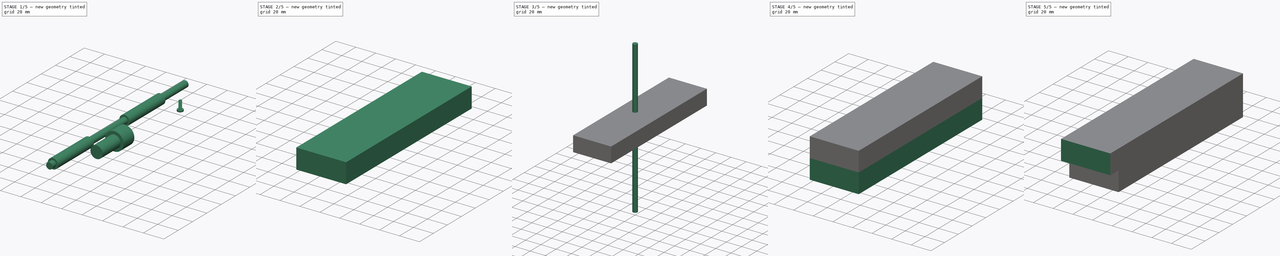
[diagram: build sequence overview — one tinted view per stage of 5, left to right]
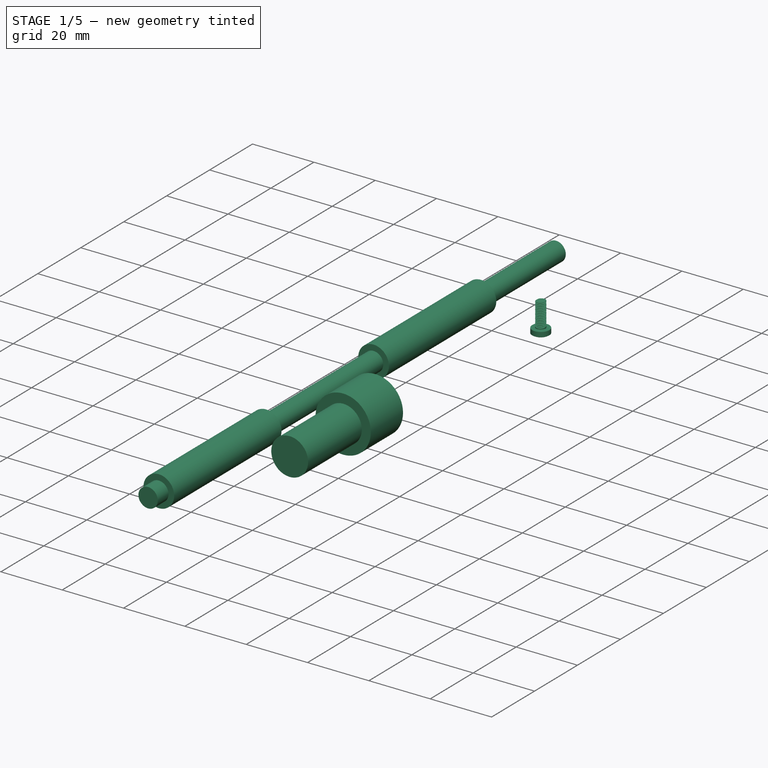
[diagram: stage 1 of 5 — iso view after this stage's code; geometry added in this stage tinted green]
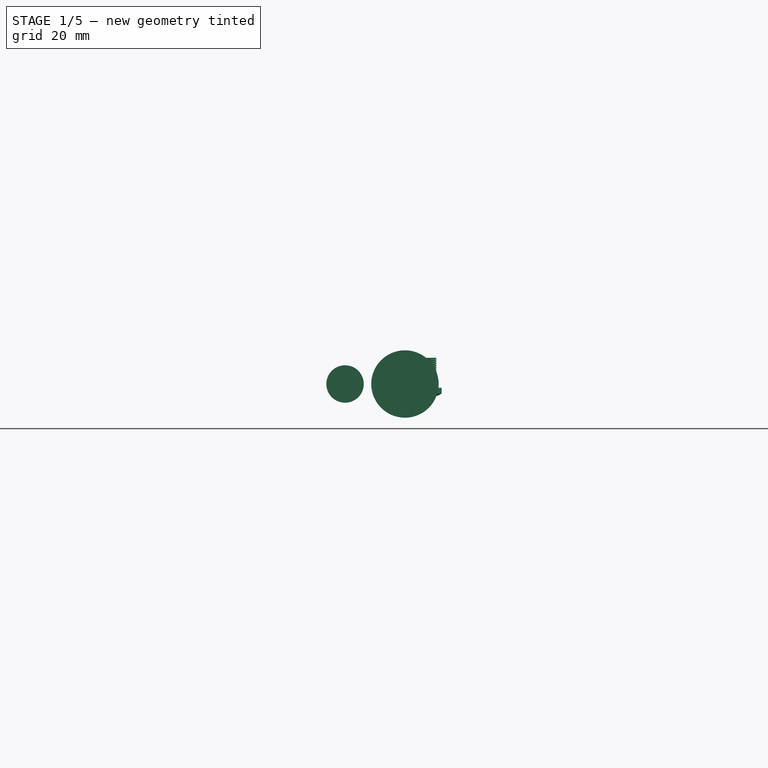
[diagram: stage 1 of 5 — front view after this stage's code; geometry added in this stage tinted green]
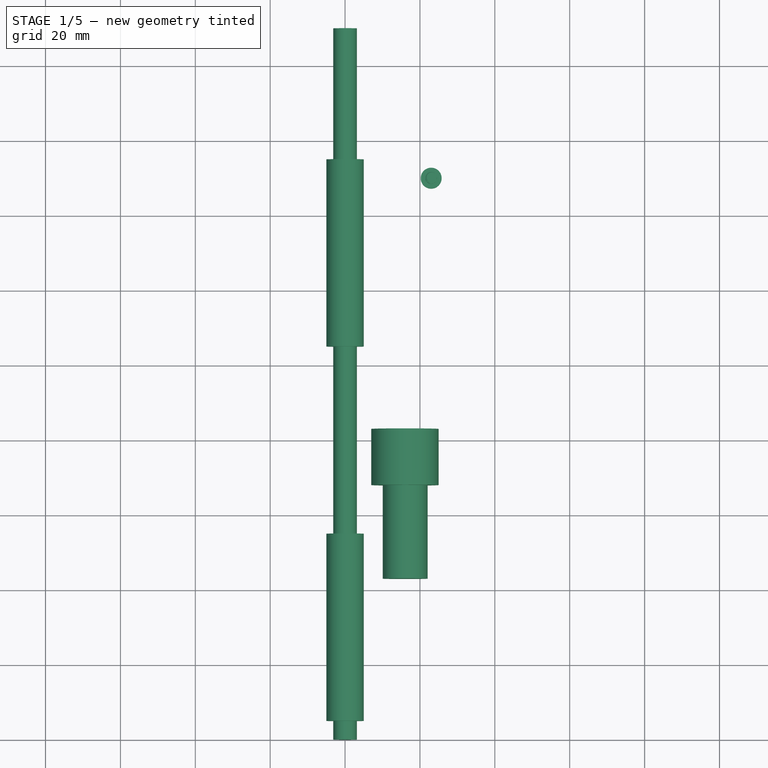
[diagram: stage 1 of 5 — top view after this stage's code; geometry added in this stage tinted green]
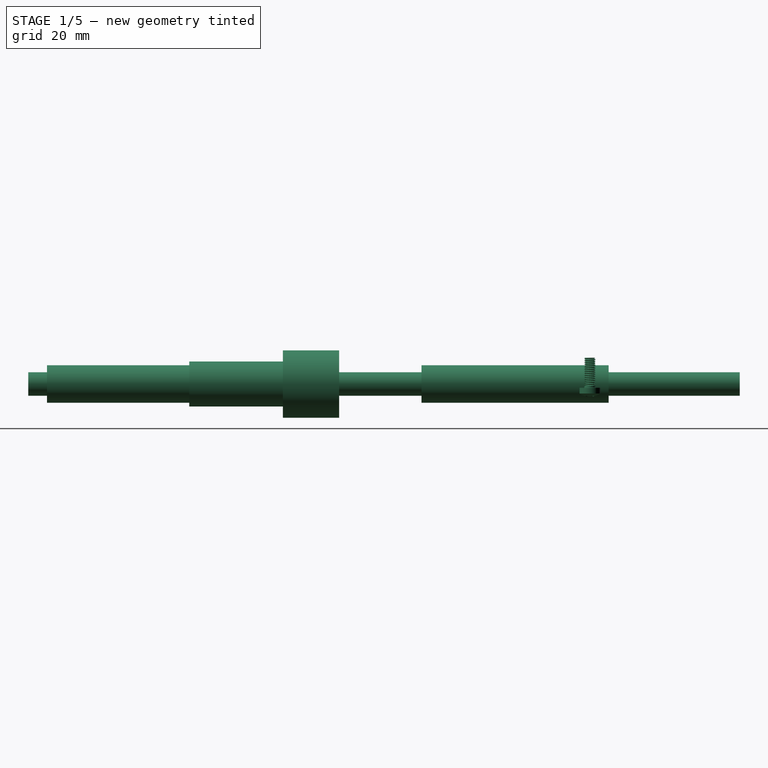
[diagram: stage 1 of 5 — right view after this stage's code; geometry added in this stage tinted green]
FCSTD DOCUMENT  (FreeCAD 0.16R6705 (Git))
Label: scatolina2
License: All rights reserved
LicenseURL: http://it.wikipedia.org/wiki/<copyright redacted>
objects: Sketcher::SketchObject×13, PartDesign::Pad×9, Part::Cut×7, PartDesign::Pocket×6, Part::FeaturePython×4, PartDesign::Mirrored×4, Part::Fuse×2, Part::MultiFuse×2, Part::Box×2, Part::Part2DObjectPython×2
note: 66 computed .brp shape members not serialized (recipe doc carries the construction recipe); baked Part::Feature solids carry a one-line shape summary decoded from their .brp

FEATURE [Sketcher::SketchObject] Sketch009
  Placement = pos=(0,3,0) rot=(1,0,0;1.5708rad)
  sketch-geometry (1):
    g0: Circle CenterX=15.9971 CenterY=9e-06 CenterZ=0 NormalX=0 NormalY=0 NormalZ=1 Radius=9
  constraints (1):
    c: Radius(g0) = 9
FEATURE [PartDesign::Pad] Pad005  label="scasso_ruota_dentata_motore"
  Length = 15
  Length2 = 100
  Placement = pos=(0,3,0) rot=(1,0,0;1.5708rad)
  Sketch = -> Sketch009
  Type = 0
FEATURE [Sketcher::SketchObject] Sketch010
  Placement = pos=(0,-25,0) rot=(1,0,0;1.5708rad)
  sketch-geometry (1):
    g0: Circle CenterX=0 CenterY=0 CenterZ=0 NormalX=0 NormalY=0 NormalZ=1 Radius=5
  constraints (1):
    c: Radius(g0) = 5
FEATURE [PartDesign::Pad] Pad006
  Length = 50
  Length2 = 100
  Placement = pos=(0,-25,0) rot=(1,0,0;1.5708rad)
  Sketch = -> Sketch010
  Type = 0
FEATURE [Sketcher::SketchObject] Sketch011
  Placement = pos=(0,75,0) rot=(1,0,0;1.5708rad)
  sketch-geometry (1):
    g0: Circle CenterX=0 CenterY=0 CenterZ=0 NormalX=0 NormalY=0 NormalZ=1 Radius=5
  constraints (1):
    c: Radius(g0) = 5
FEATURE [PartDesign::Pad] Pad007
  Length = 50
  Length2 = 100
  Placement = pos=(0,75,0) rot=(1,0,0;1.5708rad)
  Sketch = -> Sketch011
  Type = 0
FEATURE [Part::Fuse] Fusion002  label="scassi_perno"
  Base = -> Pad006
  Tool = -> Pad007
FEATURE [Sketcher::SketchObject] Sketch013
  Placement = pos=(0,-11,0) rot=(1,0,0;1.5708rad)
  sketch-geometry (1):
    g0: Circle CenterX=16.0596 CenterY=9e-06 CenterZ=0 NormalX=0 NormalY=0 NormalZ=1 Radius=6
  constraints (1):
    c: Radius(g0) = 6
FEATURE [PartDesign::Pad] Pad008  label="scasso_motore"
  Length = 26
  Length2 = 100
  Placement = pos=(0,-11,0) rot=(1,0,0;1.5708rad)
  Sketch = -> Sketch013
  Type = 0
FEATURE [Sketcher::SketchObject] Sketch006
  Placement = pos=(0,-80,0) rot=(1,0,0;1.5708rad)
  sketch-geometry (1):
    g0: Circle CenterX=0 CenterY=0 CenterZ=0 NormalX=0 NormalY=0 NormalZ=1 Radius=3.15
  constraints (1):
    c: Radius(g0) = 3.15
FEATURE [PartDesign::Pad] Pad002
  Length = 190
  Length2 = 200
  Placement = pos=(0,-80,0) rot=(1,0,0;1.5708rad)
  Reversed = true
  Sketch = -> Sketch006
  Type = 0
FEATURE [Part::FeaturePython] Screw  label="M3x8-Screw"  # Fasteners workbench fastener (typed FeaturePython)
  Placement = pos=(23,70,-1) rot=(1,0,0;3.14159rad)
  diameter = 4
  invert = false
  length = 3
  matchOuter = false
  offset = 0
  thread = true
  type = 16
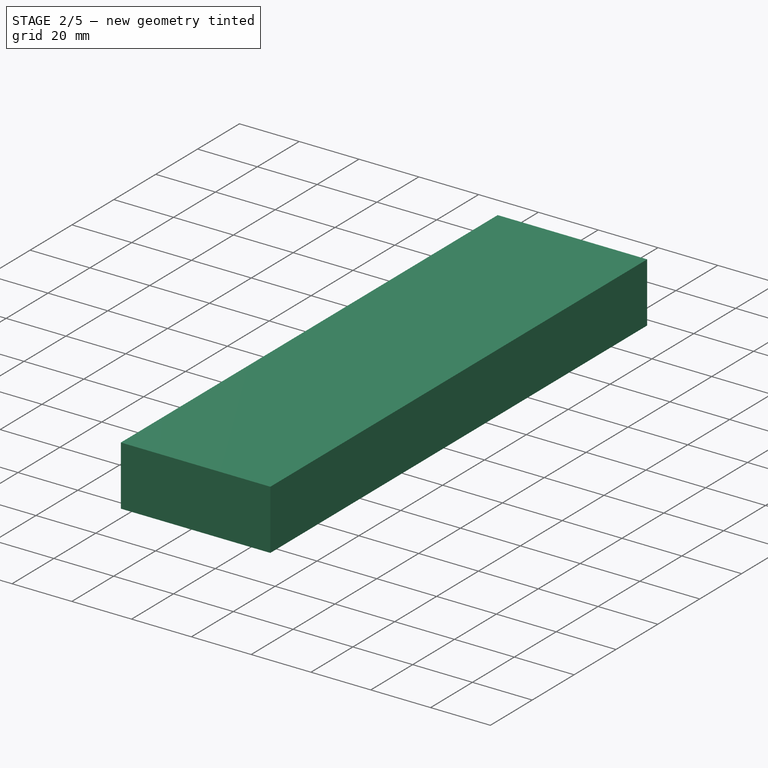
[diagram: stage 2 of 5 — iso view after this stage's code; geometry added in this stage tinted green]
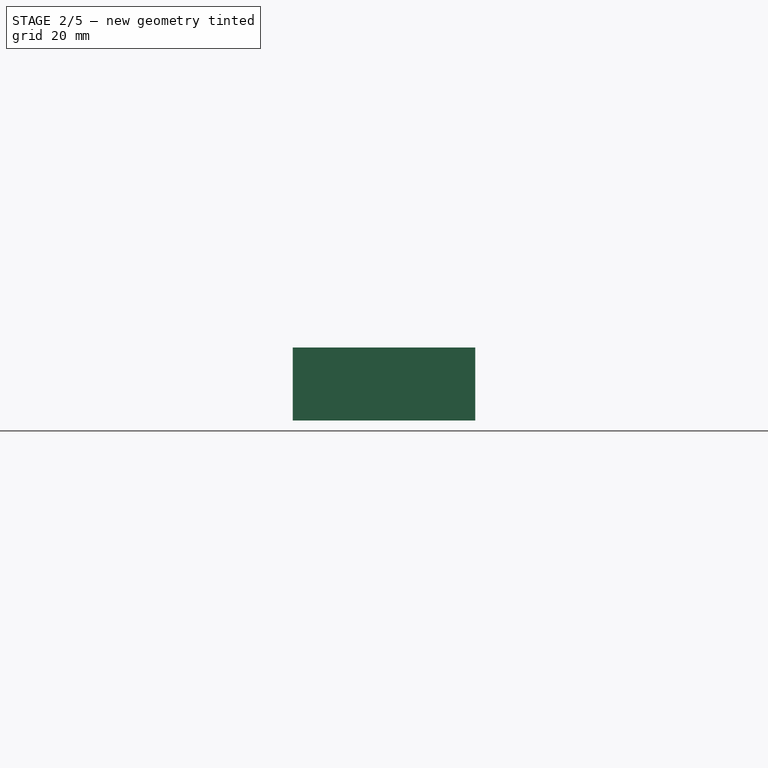
[diagram: stage 2 of 5 — front view after this stage's code; geometry added in this stage tinted green]
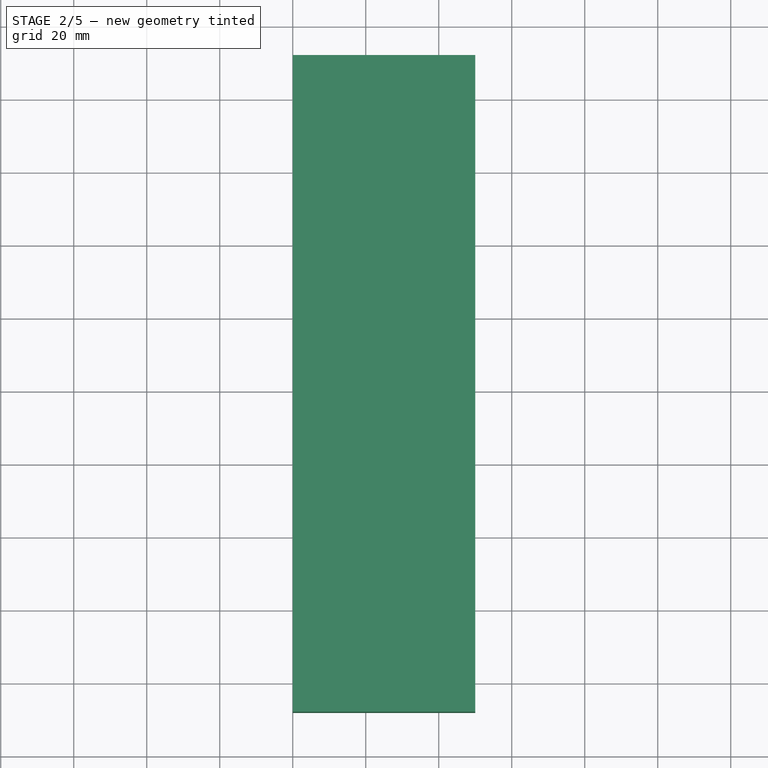
[diagram: stage 2 of 5 — top view after this stage's code; geometry added in this stage tinted green]
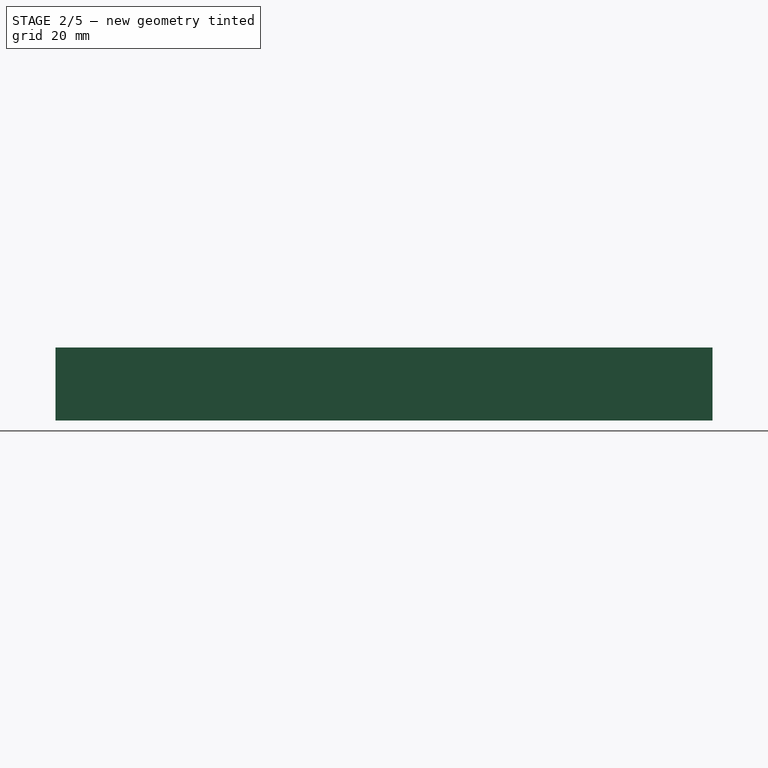
[diagram: stage 2 of 5 — right view after this stage's code; geometry added in this stage tinted green]
FEATURE [Sketcher::SketchObject] Sketch008
  Placement = pos=(0,3,0) rot=(1,0,0;1.5708rad)
  sketch-geometry (1):
    g0: Circle CenterX=0 CenterY=0 CenterZ=0 NormalX=0 NormalY=0 NormalZ=1 Radius=13
  constraints (1):
    c: Radius(g0) = 13
FEATURE [PartDesign::Pad] Pad004  label="scasso_ruota_dentata"
  Length = 15
  Length2 = 100
  Placement = pos=(0,3,0) rot=(1,0,0;1.5708rad)
  Sketch = -> Sketch008
  Type = 0
FEATURE [Part::Fuse] Fusion001  label="scassi_ruote_dentate"
  Base = -> Pad005
  Tool = -> Pad004
FEATURE [Part::MultiFuse] Fusion005  label="scassi_tutti"
  Shapes = -> [Pad008,Fusion002,Fusion001]
FEATURE [Part::Box] Box  label="Cubo"
  Height = 20
  Length = 50
  Placement = pos=(-20,-88,-1) rot=(0,0,1;0rad)
  Width = 180
FEATURE [Part::MultiFuse] Fusion
  Shapes = -> [Fusion005,Pad002]
FEATURE [Part::Cut] Cut  label="corpo"
  Base = -> Box
  Tool = -> Fusion
FEATURE [Part::Cut] Cut009
  Base = -> Cut
  Tool = -> Screw
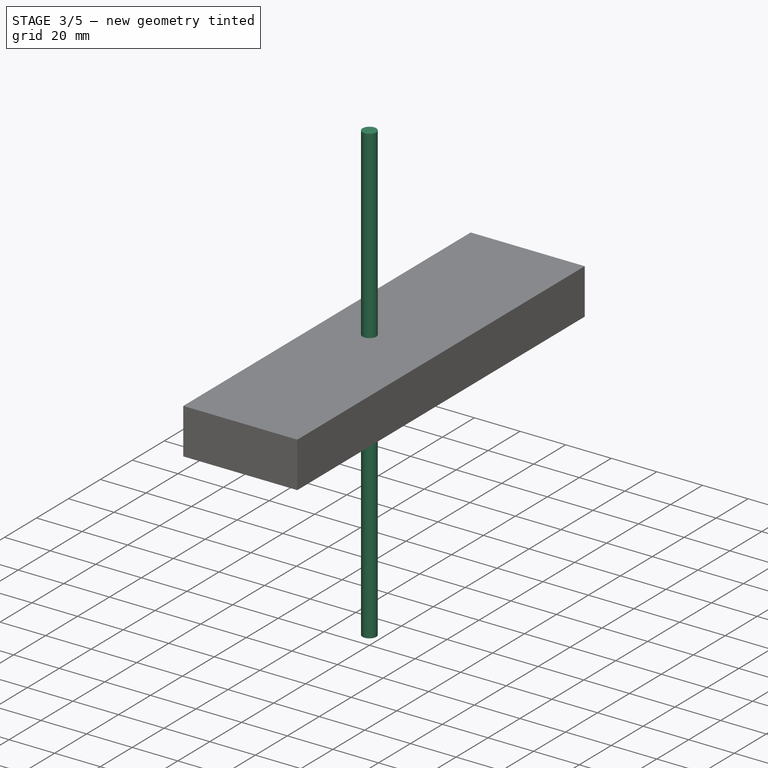
[diagram: stage 3 of 5 — iso view after this stage's code; geometry added in this stage tinted green]
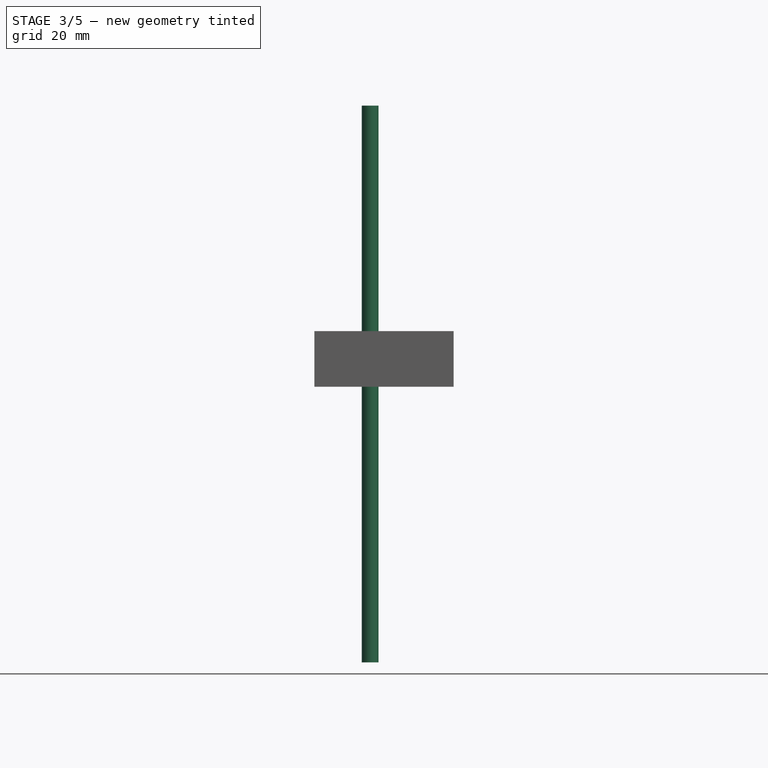
[diagram: stage 3 of 5 — front view after this stage's code; geometry added in this stage tinted green]
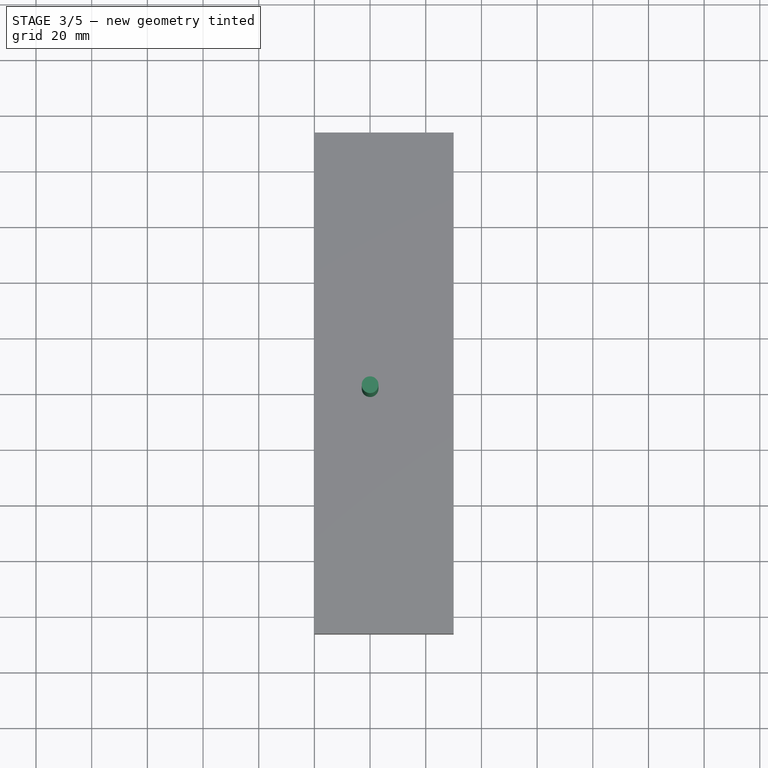
[diagram: stage 3 of 5 — top view after this stage's code; geometry added in this stage tinted green]
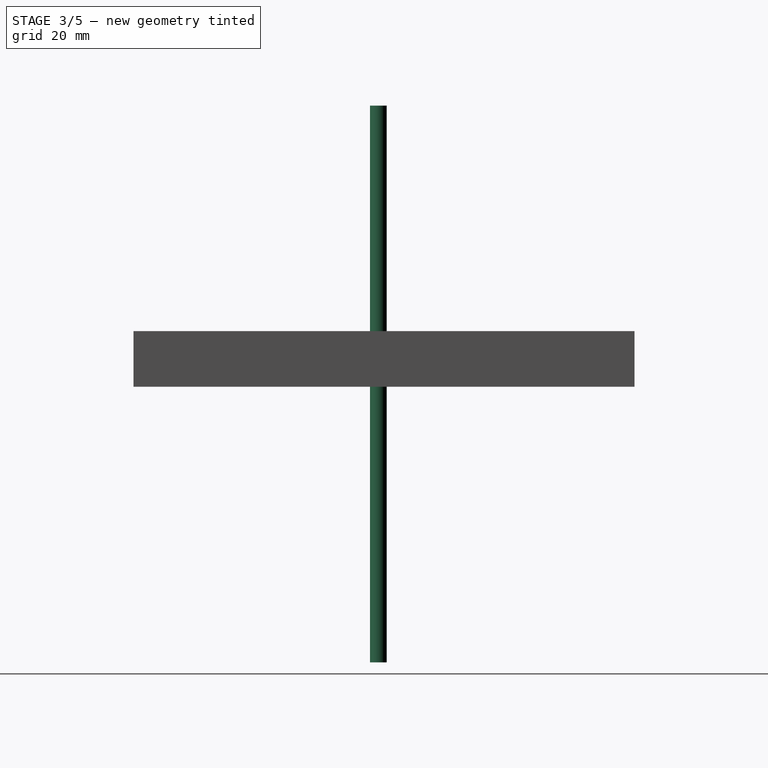
[diagram: stage 3 of 5 — right view after this stage's code; geometry added in this stage tinted green]
FEATURE [Part::FeaturePython] Screw001  label="M3x8-Screw006"  # Fasteners workbench fastener (typed FeaturePython)
  Placement = pos=(-12,70,-1) rot=(1,0,0;3.14159rad)
  diameter = 4
  invert = false
  length = 3
  matchOuter = false
  offset = 0
  thread = true
  type = 16
FEATURE [Part::FeaturePython] Screw002  label="M3x8-Screw005"  # Fasteners workbench fastener (typed FeaturePython)
  Placement = pos=(-12,-70,-1) rot=(1,0,0;3.14159rad)
  diameter = 4
  invert = false
  length = 3
  matchOuter = false
  offset = 0
  thread = true
  type = 16
FEATURE [Part::FeaturePython] Screw003  label="M3x8-Screw004"  # Fasteners workbench fastener (typed FeaturePython)
  Placement = pos=(23,-70,-1) rot=(1,0,0;3.14159rad)
  diameter = 4
  invert = false
  length = 3
  matchOuter = false
  offset = 0
  thread = true
  type = 16
FEATURE [Part::Part2DObjectPython] InvoluteGear  # Draft 2D object (typed FeaturePython)
  ExternalGear = true
  HighPrecision = true
  Modules = 1.5
  NumberOfTeeth = 13
  PressureAngle = 10
FEATURE [PartDesign::Pad] Pad
  Length = 10
  Length2 = 100
  Sketch = -> InvoluteGear
  Type = 0
FEATURE [Sketcher::SketchObject] Sketch019
  Placement = pos=(0,0,0) rot=(1,0,0;3.14159rad)
  sketch-geometry (1):
    g0: Circle CenterX=0 CenterY=0 CenterZ=0 NormalX=0 NormalY=0 NormalZ=1 Radius=3.00999
FEATURE [PartDesign::Pad] Pad011
  Length = 200
  Length2 = 200
  Midplane = true
  Placement = pos=(0,0,0) rot=(1,0,0;3.14159rad)
  Sketch = -> Sketch019
  Type = 0
FEATURE [Part::Cut] Cut010
  Base = -> Cut009
  Tool = -> Screw003
FEATURE [Part::Cut] Cut011
  Base = -> Cut010
  Tool = -> Screw002
FEATURE [Part::Cut] Cut012  label="corpo_viti"
  Base = -> Cut011
  Tool = -> Screw001
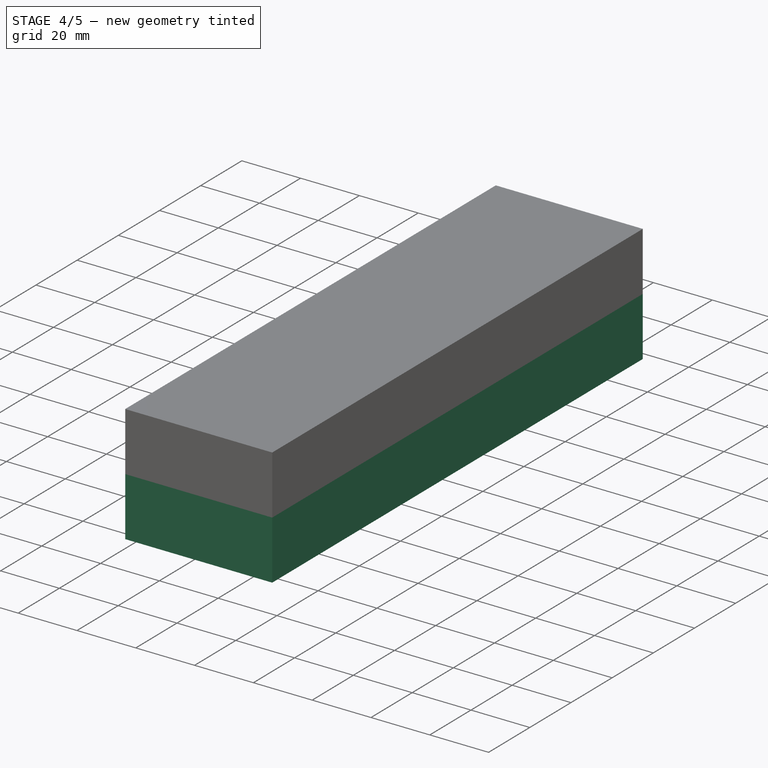
[diagram: stage 4 of 5 — iso view after this stage's code; geometry added in this stage tinted green]
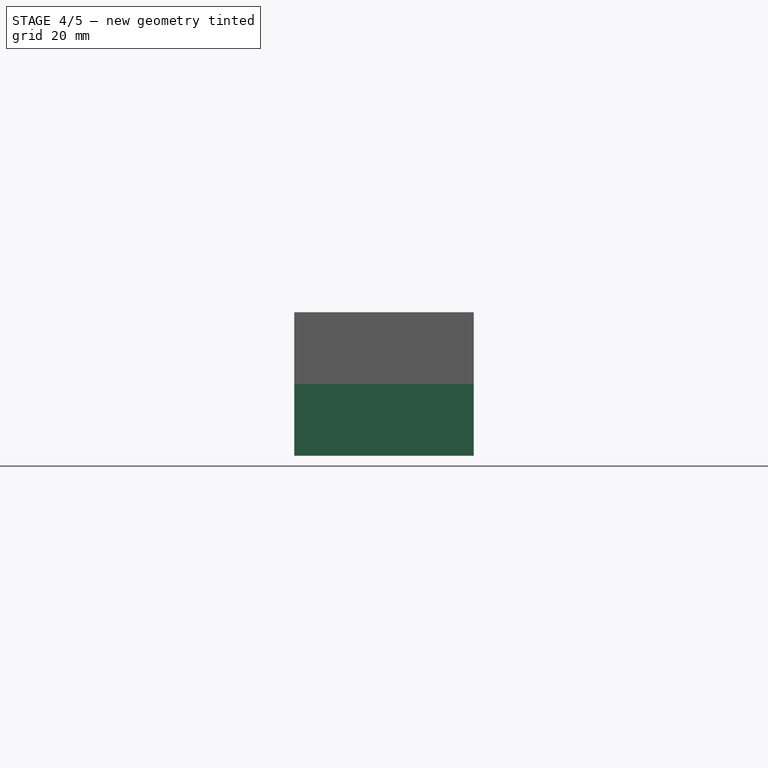
[diagram: stage 4 of 5 — front view after this stage's code; geometry added in this stage tinted green]
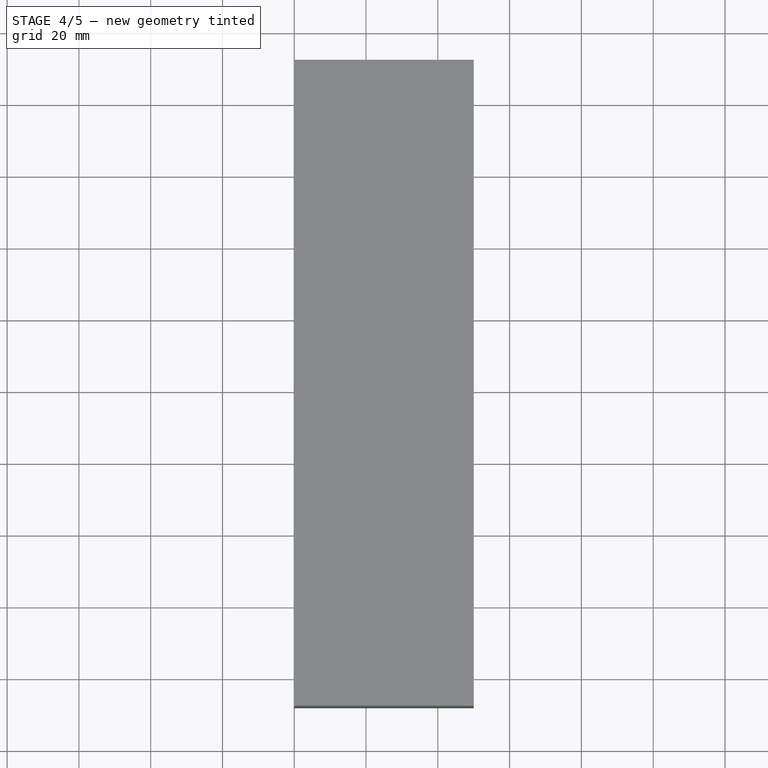
[diagram: stage 4 of 5 — top view after this stage's code; geometry added in this stage tinted green]
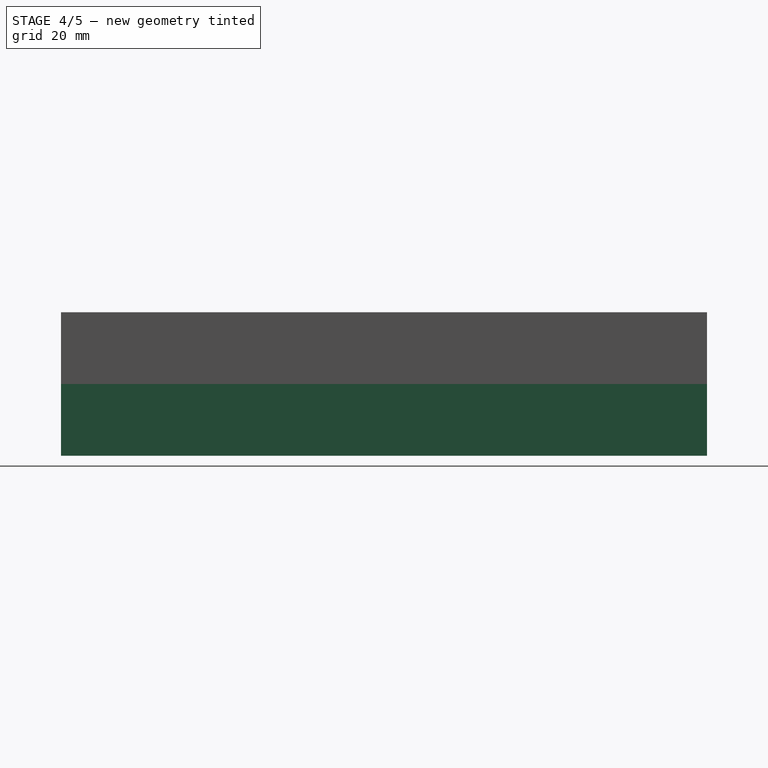
[diagram: stage 4 of 5 — right view after this stage's code; geometry added in this stage tinted green]
FEATURE [Part::Box] Box001  label="Cubo001"
  Height = 20
  Length = 50
  Placement = pos=(-20,-88,-21) rot=(0,0,1;0rad)
  Width = 180
FEATURE [Part::Cut] Cut001  label="tappo"
  Base = -> Box001
  Tool = -> Fusion
FEATURE [Sketcher::SketchObject] Sketch015
  Placement = pos=(0,0,-21) rot=(1,0,0;3.14159rad)
  Support = -> Cut001 [Face5]
  sketch-geometry (1):
    g0: Circle CenterX=23 CenterY=70 CenterZ=0 NormalX=0 NormalY=0 NormalZ=1 Radius=1.5
  constraints (3):
    c: Radius(g0) = 1.5
    c: DistanceX(g-1,g0) = 23
    c: DistanceY(g-1,g0) = 70
FEATURE [PartDesign::Pocket] Pocket001  label="buco_vite_dx"
  Length = 5
  Sketch = -> Sketch015
  Type = 1
FEATURE [PartDesign::Mirrored] Mirrored
  MirrorPlane = -> Sketch015 [H_Axis]
  Originals = -> [Pocket001]
FEATURE [Part::Part2DObjectPython] InvoluteGear001  # Draft 2D object (typed FeaturePython)
  ExternalGear = true
  HighPrecision = true
  Modules = 1.5
  NumberOfTeeth = 7
  Placement = pos=(16,0,0) rot=(1,0,0;1.5708rad)
  PressureAngle = 20
FEATURE [PartDesign::Pad] Pad010  label="pignone_pieno"
  Length = 10
  Length2 = 100
  Placement = pos=(16,0,0) rot=(1,0,0;1.5708rad)
  Sketch = -> InvoluteGear001
  Type = 0
FEATURE [Sketcher::SketchObject] Sketch012
  Placement = pos=(16,-10,0) rot=(1,0,0;1.5708rad)
  Support = -> Pad010 [Face72]
  sketch-geometry (3):
    g0: ArcOfCircle CenterX=0.00960217 CenterY=0.00978991 CenterZ=0 NormalX=0 NormalY=0 NormalZ=1 Radius=1.5 StartAngle=5.5029 EndAngle=10.2051
    g1: LineSegment StartX=-1.05646 StartY=-1.04544 StartZ=0 EndX=1.07567 EndY=-1.04544 EndZ=0
    g2: GeomPoint [constr] X=1.0761 Y=-1.19021 Z=0
  constraints (5):
    c: Radius(g0) = 1.5
    c: Parallel(g-1,g1)
    c: Coincident(g0,g1)
    c: Coincident(g0,g1)
    c: DistanceY(g2,g0) = 1.2
FEATURE [PartDesign::Pocket] Pocket005  label="pignone"
  Length = 5
  Placement = pos=(16,0,0) rot=(1,0,0;1.5708rad)
  Sketch = -> Sketch012
  Type = 1
FEATURE [Part::Cut] Cut008  label="ingranaggio_centrale"
  Base = -> Pad
  Tool = -> Pad011
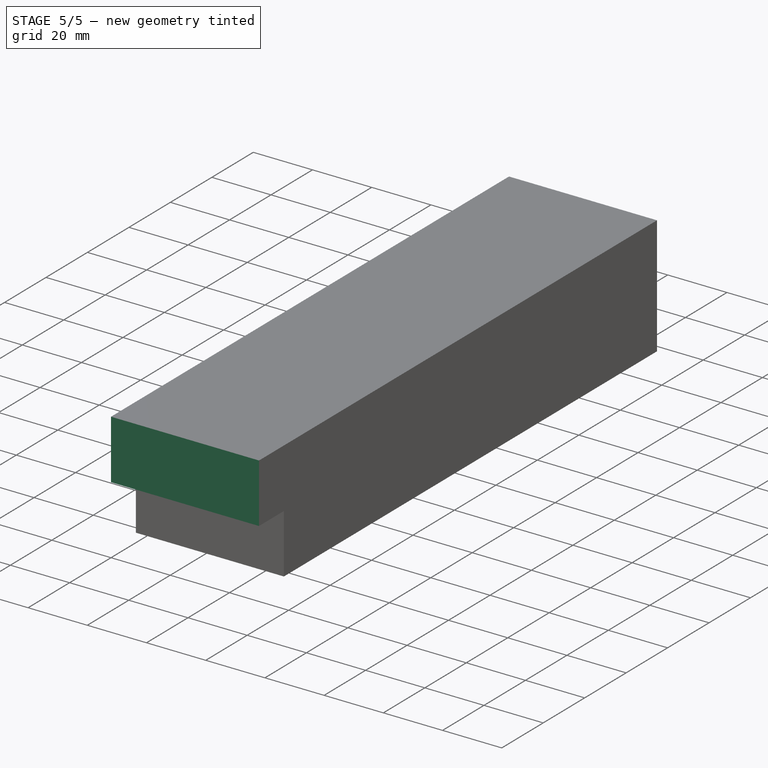
[diagram: stage 5 of 5 — iso view after this stage's code; geometry added in this stage tinted green]
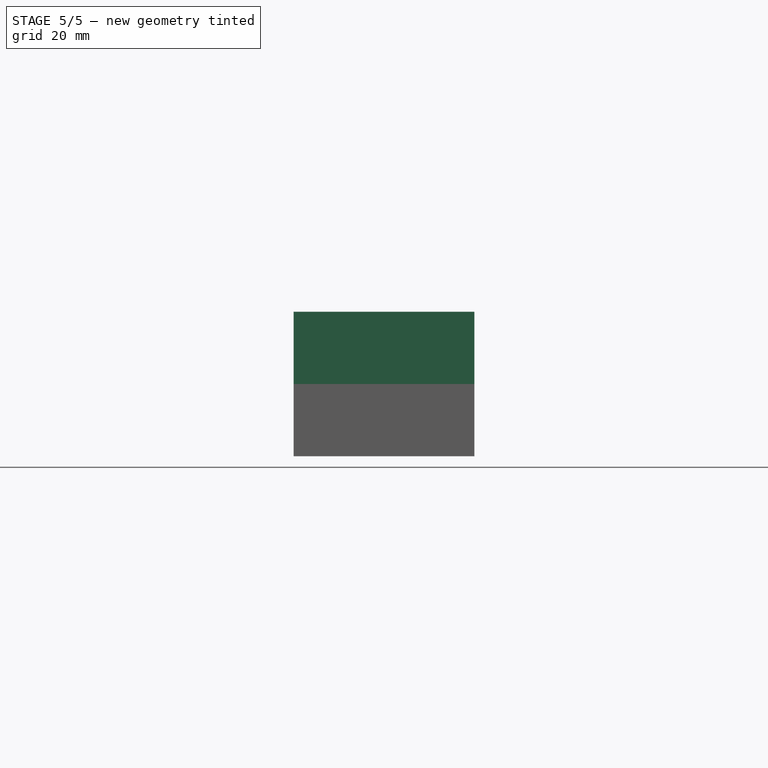
[diagram: stage 5 of 5 — front view after this stage's code; geometry added in this stage tinted green]
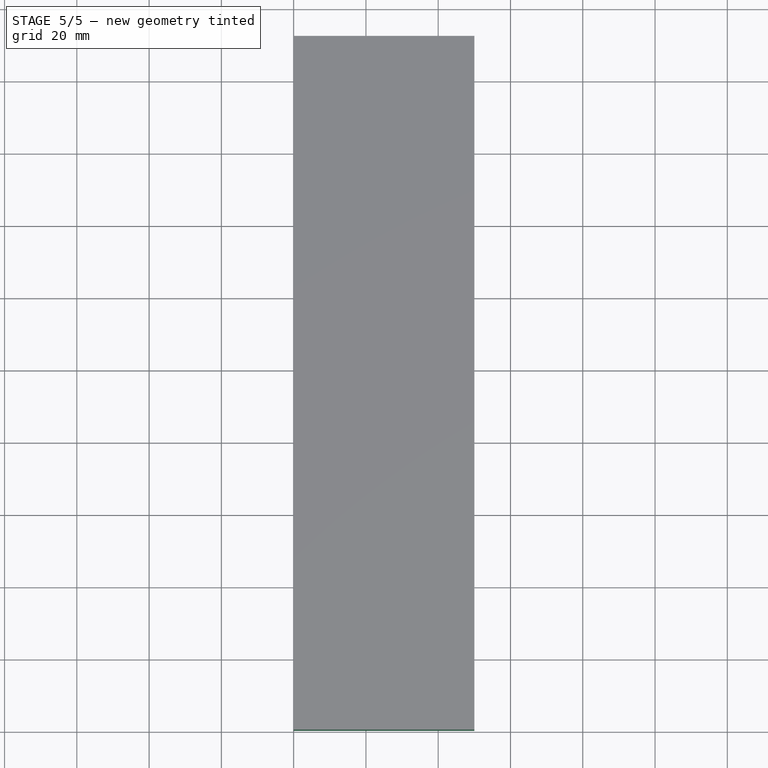
[diagram: stage 5 of 5 — top view after this stage's code; geometry added in this stage tinted green]
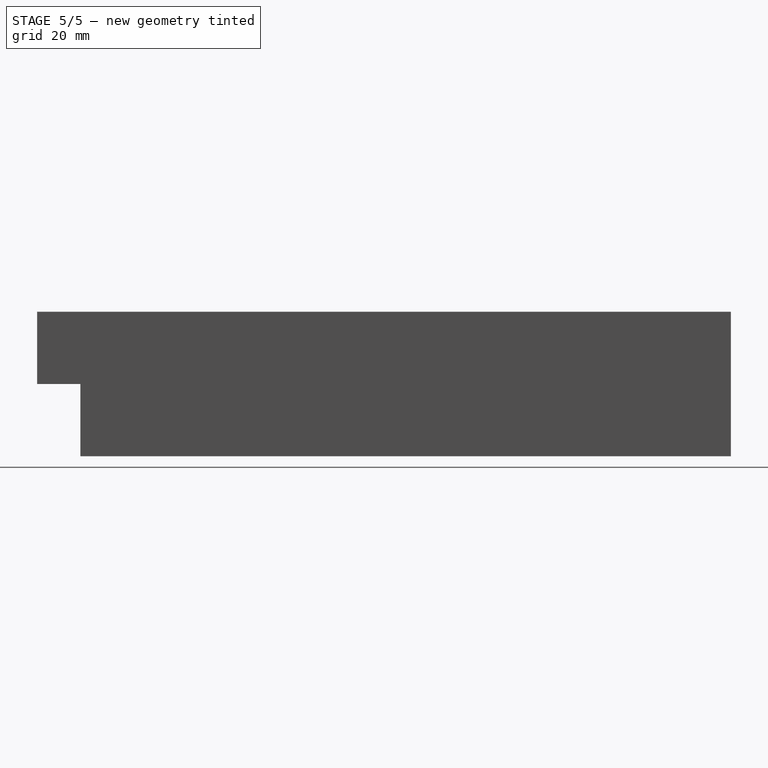
[diagram: stage 5 of 5 — right view after this stage's code; geometry added in this stage tinted green]
FEATURE [Sketcher::SketchObject] Sketch
  Placement = pos=(0,0,-1) rot=(0,0,1;0rad)
  Support = -> Cut001 [Face3]
FEATURE [PartDesign::Pocket] Pocket  label="corpo_con_scassi_anche_per_filo"
  Length = 3
  Type = 0
FEATURE [Sketcher::SketchObject] Sketch016
  Placement = pos=(0,0,-21) rot=(1,0,0;3.14159rad)
  Support = -> Mirrored [Face5]
  sketch-geometry (1):
    g0: Circle CenterX=-12 CenterY=70 CenterZ=0 NormalX=0 NormalY=0 NormalZ=1 Radius=1.5
  constraints (3):
    c: Radius(g0) = 1.5
    c: DistanceX(g0,g-1) = 12
    c: DistanceY(g-1,g0) = 70
FEATURE [PartDesign::Pocket] Pocket002  label="buco_vite_sx"
  Length = 5
  Sketch = -> Sketch016
  Type = 1
FEATURE [PartDesign::Mirrored] Mirrored001
  MirrorPlane = -> Sketch016 [H_Axis]
  Originals = -> [Pocket002]
FEATURE [Sketcher::SketchObject] Sketch017
  Placement = pos=(0,0,-21) rot=(1,0,0;3.14159rad)
  Support = -> Mirrored001 [Face5]
  sketch-geometry (1):
    g0: Circle CenterX=23 CenterY=70 CenterZ=0 NormalX=0 NormalY=0 NormalZ=1 Radius=3
  constraints (3):
    c: Radius(g0) = 3
    c: DistanceY(g-1,g0) = 70
    c: DistanceX(g-1,g0) = 23
FEATURE [PartDesign::Pocket] Pocket003  label="svaso_vite_dx"
  Length = 5
  Sketch = -> Sketch017
  Type = 0
FEATURE [PartDesign::Mirrored] Mirrored002
  MirrorPlane = -> Sketch017 [H_Axis]
  Originals = -> [Pocket003]
FEATURE [Sketcher::SketchObject] Sketch018
  Placement = pos=(0,0,-21) rot=(1,0,0;3.14159rad)
  Support = -> Mirrored002 [Face5]
  sketch-geometry (1):
    g0: Circle CenterX=-12 CenterY=70 CenterZ=0 NormalX=0 NormalY=0 NormalZ=1 Radius=3
  constraints (3):
    c: Radius(g0) = 3
    c: DistanceX(g0,g-1) = 12
    c: DistanceY(g-1,g0) = 70
FEATURE [PartDesign::Pocket] Pocket004  label="svaso_vite_sx"
  Length = 5
  Sketch = -> Sketch018
  Type = 0
FEATURE [PartDesign::Mirrored] Mirrored003  label="tappo_viti"
  MirrorPlane = -> Sketch018 [H_Axis]
  Originals = -> [Pocket004]
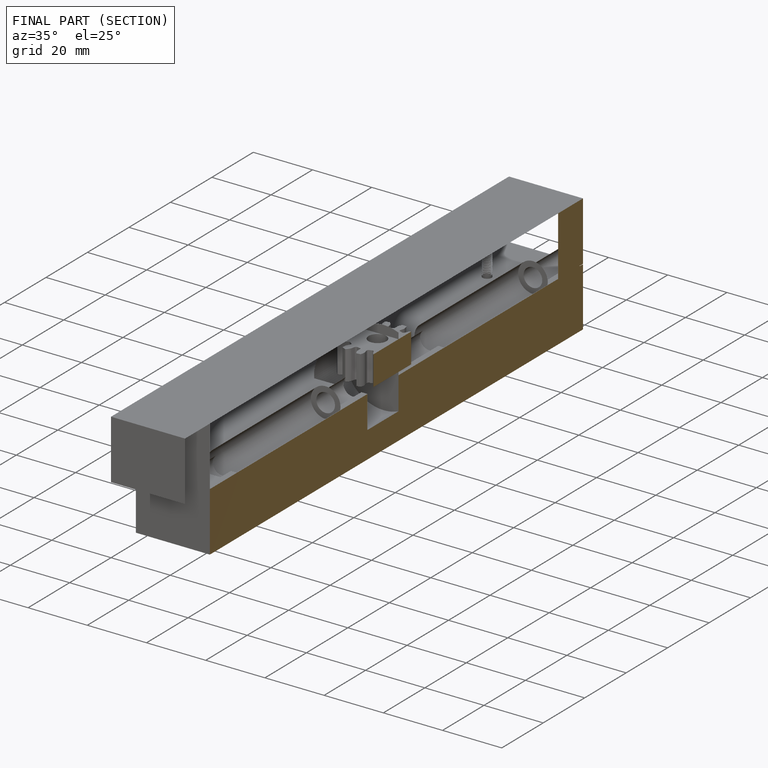
[diagram: finished part — half-section view (interior)]
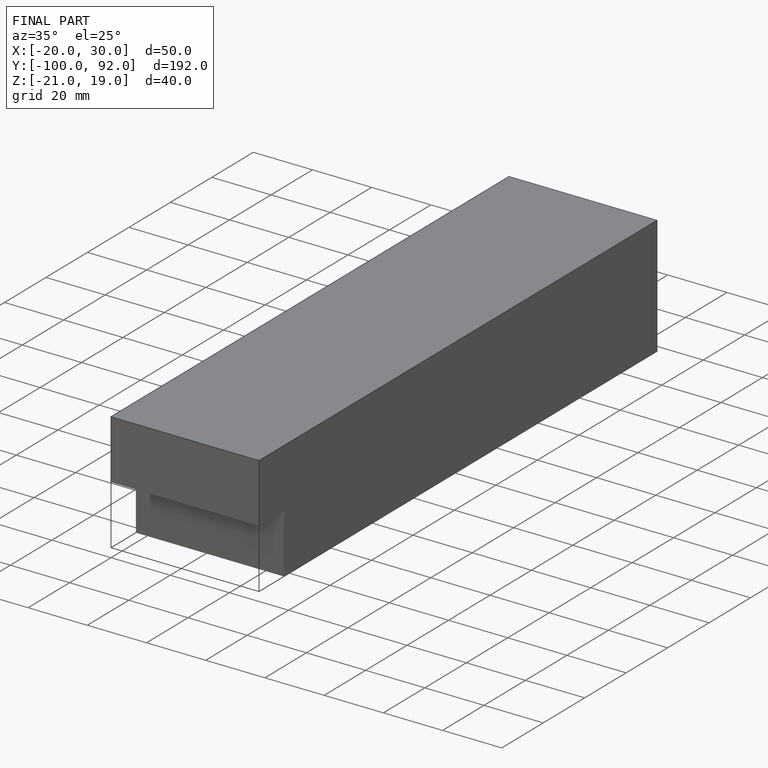
[diagram: finished part — iso view with bounding-box wireframe]
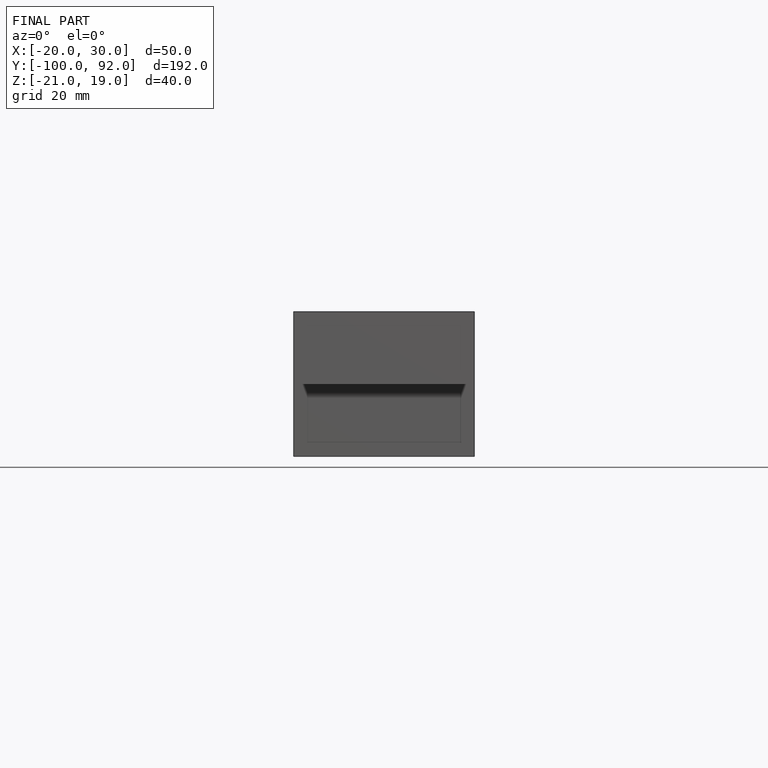
[diagram: finished part — front view with bounding-box wireframe]
